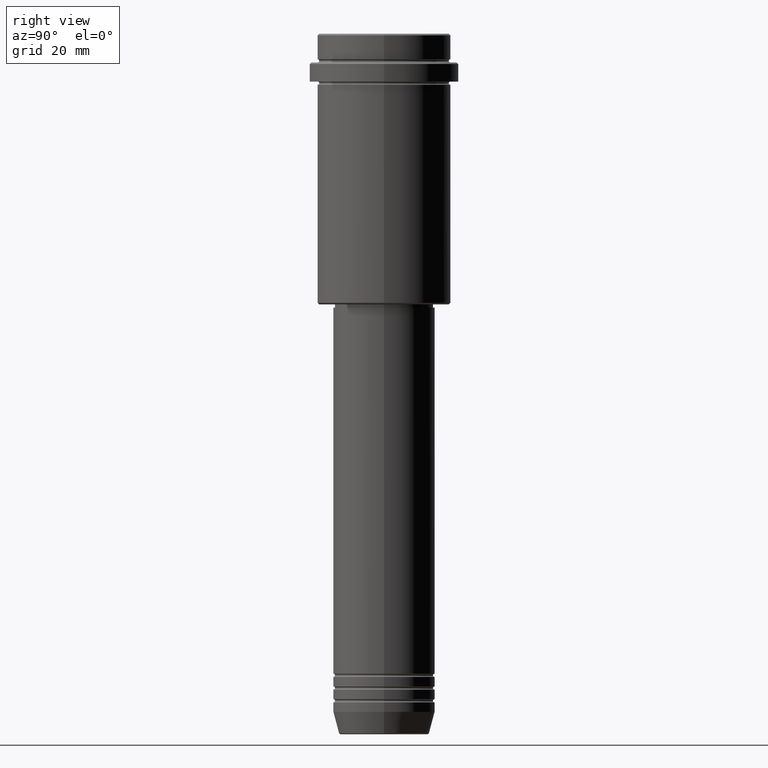
[diagram: clean part render]
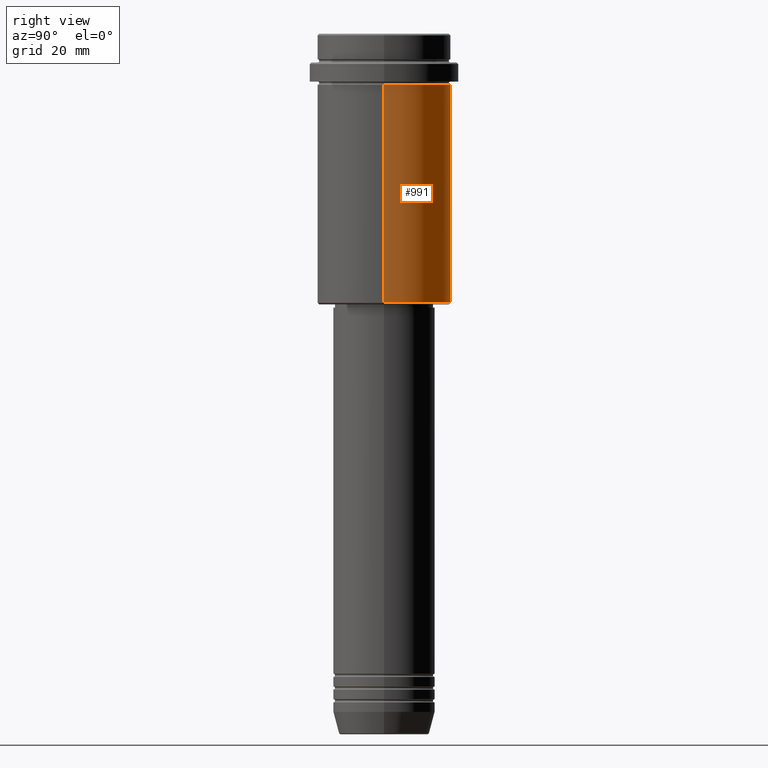
[diagram: same view with one face highlighted and labeled with its STEP entity id]
A machine part, right view. The second image highlights one B-rep face of the part: STEP entity #991.
In plain terms, the highlighted cylindrical surface (partial cylindrical patch) has radius 21 mm, axis along (-0, -0, 1).
Its self-contained STEP definition (entity closure, byte-faithful):
#24 = CARTESIAN_POINT ( 'NONE',  ( -20.99999999999999645, 2.571758278209441267E-15, -16.00000000000000355 ) ) ;
#30 = FACE_OUTER_BOUND ( 'NONE', #484, .T. ) ;
#67 = EDGE_CURVE ( 'NONE', #1269, #329, #1105, .T. ) ;
#81 = DIRECTION ( 'NONE',  ( -0.000000000000000000, -0.000000000000000000, 1.000000000000000000 ) ) ;
#98 = CARTESIAN_POINT ( 'NONE',  ( -20.99999999999999645, 2.571758278209441267E-15, -84.49999999999998579 ) ) ;
#145 = ORIENTED_EDGE ( 'NONE', *, *, #646, .F. ) ;
#161 = CARTESIAN_POINT ( 'NONE',  ( 0.000000000000000000, 0.000000000000000000, -84.49999999999998579 ) ) ;
#218 = ORIENTED_EDGE ( 'NONE', *, *, #67, .F. ) ;
#251 = DIRECTION ( 'NONE',  ( -0.000000000000000000, -0.000000000000000000, 1.000000000000000000 ) ) ;
#298 = ORIENTED_EDGE ( 'NONE', *, *, #889, .T. ) ;
#301 = DIRECTION ( 'NONE',  ( 1.000000000000000000, 0.000000000000000000, 0.000000000000000000 ) ) ;
#329 = VERTEX_POINT ( 'NONE', #24 ) ;
#459 = CARTESIAN_POINT ( 'NONE',  ( 20.99999999999999645, 0.000000000000000000, -16.00000000000000355 ) ) ;
#484 = EDGE_LOOP ( 'NONE', ( #298, #1208, #218, #145 ) ) ;
#487 = CARTESIAN_POINT ( 'NONE',  ( 20.99999999999999645, 0.000000000000000000, -84.49999999999998579 ) ) ;
#491 = DIRECTION ( 'NONE',  ( -1.000000000000000000, 0.000000000000000000, 0.000000000000000000 ) ) ;
#501 = DIRECTION ( 'NONE',  ( -0.000000000000000000, -0.000000000000000000, 1.000000000000000000 ) ) ;
#502 = DIRECTION ( 'NONE',  ( -0.000000000000000000, -0.000000000000000000, 1.000000000000000000 ) ) ;
#535 = VERTEX_POINT ( 'NONE', #487 ) ;
#591 = VECTOR ( 'NONE', #502, 1000.000000000000000 ) ;
#593 = LINE ( 'NONE', #932, #591 ) ;
#601 = VERTEX_POINT ( 'NONE', #98 ) ;
#646 = EDGE_CURVE ( 'NONE', #535, #1269, #747, .T. ) ;
#657 = AXIS2_PLACEMENT_3D ( 'NONE', #1166, #501, #1240 ) ;
#747 = LINE ( 'NONE', #1400, #803 ) ;
#803 = VECTOR ( 'NONE', #81, 1000.000000000000000 ) ;
#831 = CIRCLE ( 'NONE', #1214, 20.99999999999999645 ) ;
#866 = DIRECTION ( 'NONE',  ( -0.000000000000000000, -0.000000000000000000, 1.000000000000000000 ) ) ;
#889 = EDGE_CURVE ( 'NONE', #535, #601, #831, .T. ) ;
#911 = CYLINDRICAL_SURFACE ( 'NONE', #1155, 20.99999999999999645 ) ;
#932 = CARTESIAN_POINT ( 'NONE',  ( -20.99999999999999645, 2.571758278209441267E-15, 0.000000000000000000 ) ) ;
#991 = ADVANCED_FACE ( 'NONE', ( #30 ), #911, .T. ) ;
#1105 = CIRCLE ( 'NONE', #657, 20.99999999999999645 ) ;
#1155 = AXIS2_PLACEMENT_3D ( 'NONE', #1343, #866, #301 ) ;
#1166 = CARTESIAN_POINT ( 'NONE',  ( 0.000000000000000000, 0.000000000000000000, -16.00000000000000355 ) ) ;
#1208 = ORIENTED_EDGE ( 'NONE', *, *, #1295, .T. ) ;
#1214 = AXIS2_PLACEMENT_3D ( 'NONE', #161, #251, #491 ) ;
#1240 = DIRECTION ( 'NONE',  ( 1.000000000000000000, 0.000000000000000000, 0.000000000000000000 ) ) ;
#1269 = VERTEX_POINT ( 'NONE', #459 ) ;
#1295 = EDGE_CURVE ( 'NONE', #601, #329, #593, .T. ) ;
#1343 = CARTESIAN_POINT ( 'NONE',  ( 0.000000000000000000, 0.000000000000000000, 0.000000000000000000 ) ) ;
#1400 = CARTESIAN_POINT ( 'NONE',  ( 20.99999999999999645, 0.000000000000000000, 0.000000000000000000 ) ) ;